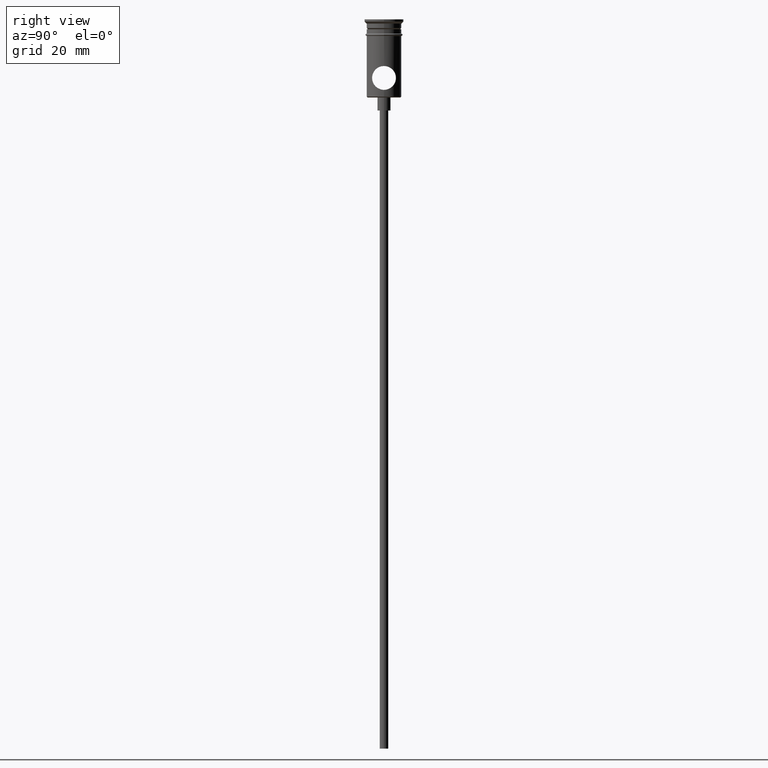
[diagram: clean part render]
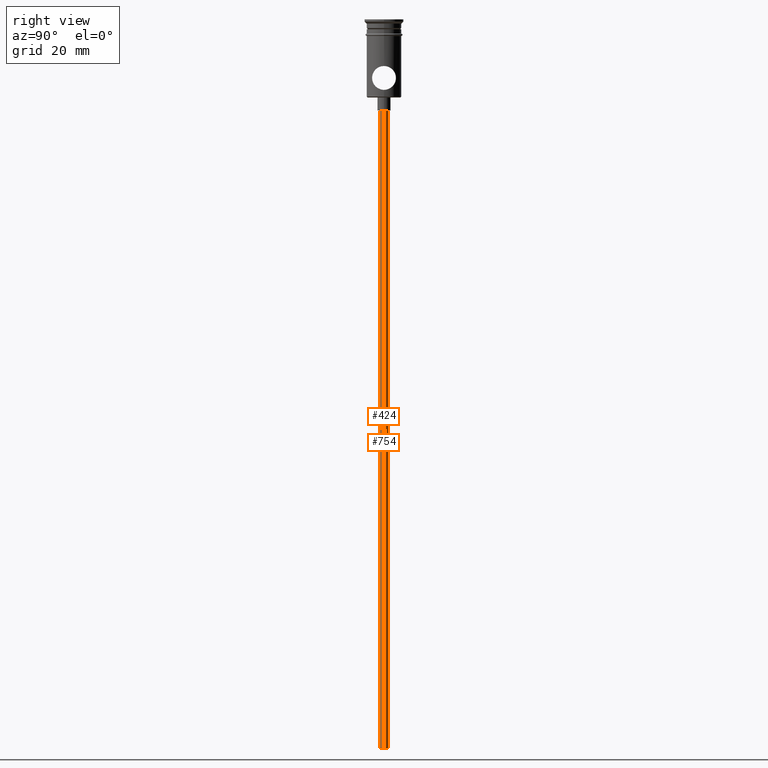
[diagram: same view with one multi-face feature highlighted, each face labeled with its STEP entity id]
A machine part, right view. The highlighted faces form ONE feature: a constant-radius fillet chain: 2 tangent blend faces with common blend radius 1 mm. The faces share edges in the B-rep.
Their STEP definitions:
[1] entity #754 (Cylinder):
#25 = ORIENTED_EDGE ( 'NONE', *, *, #1396, .T. ) ;
#83 = ORIENTED_EDGE ( 'NONE', *, *, #649, .T. ) ;
#105 = VERTEX_POINT ( 'NONE', #731 ) ;
#120 = CARTESIAN_POINT ( 'NONE',  ( -0.9999999999999997780, 1.224646799147352961E-16, -167.9999999999999716 ) ) ;
#261 = CARTESIAN_POINT ( 'NONE',  ( 0.9999999999999997780, 0.000000000000000000, -167.9999999999999716 ) ) ;
#322 = CARTESIAN_POINT ( 'NONE',  ( 0.000000000000000000, 0.000000000000000000, -167.9999999999999716 ) ) ;
#329 = EDGE_LOOP ( 'NONE', ( #839, #83, #25, #1316 ) ) ;
#373 = CARTESIAN_POINT ( 'NONE',  ( 0.000000000000000000, 0.000000000000000000, -167.9999999999999716 ) ) ;
#388 = AXIS2_PLACEMENT_3D ( 'NONE', #322, #403, #1063 ) ;
#403 = DIRECTION ( 'NONE',  ( 0.000000000000000000, 0.000000000000000000, -1.000000000000000000 ) ) ;
#416 = DIRECTION ( 'NONE',  ( 1.000000000000000000, 0.000000000000000000, 0.000000000000000000 ) ) ;
#478 = EDGE_CURVE ( 'NONE', #868, #1144, #1209, .T. ) ;
#578 = DIRECTION ( 'NONE',  ( -1.000000000000000000, 0.000000000000000000, 0.000000000000000000 ) ) ;
#593 = AXIS2_PLACEMENT_3D ( 'NONE', #1226, #888, #578 ) ;
#619 = AXIS2_PLACEMENT_3D ( 'NONE', #373, #1398, #416 ) ;
#649 = EDGE_CURVE ( 'NONE', #788, #105, #1175, .T. ) ;
#677 = EDGE_CURVE ( 'NONE', #788, #868, #813, .T. ) ;
#678 = DIRECTION ( 'NONE',  ( -0.000000000000000000, -0.000000000000000000, 1.000000000000000000 ) ) ;
#731 = CARTESIAN_POINT ( 'NONE',  ( -0.9999999999999997780, 1.224646799147352961E-16, -20.99999999999999645 ) ) ;
#754 = ADVANCED_FACE ( 'NONE', ( #1006 ), #907, .T. ) ;
#788 = VERTEX_POINT ( 'NONE', #120 ) ;
#813 = CIRCLE ( 'NONE', #388, 0.9999999999999997780 ) ;
#839 = ORIENTED_EDGE ( 'NONE', *, *, #677, .F. ) ;
#868 = VERTEX_POINT ( 'NONE', #1338 ) ;
#888 = DIRECTION ( 'NONE',  ( 0.000000000000000000, 0.000000000000000000, -1.000000000000000000 ) ) ;
#907 = CYLINDRICAL_SURFACE ( 'NONE', #619, 0.9999999999999997780 ) ;
#1006 = FACE_OUTER_BOUND ( 'NONE', #329, .T. ) ;
#1063 = DIRECTION ( 'NONE',  ( -1.000000000000000000, 0.000000000000000000, 0.000000000000000000 ) ) ;
#1086 = VECTOR ( 'NONE', #678, 1000.000000000000000 ) ;
#1144 = VERTEX_POINT ( 'NONE', #1381 ) ;
#1175 = LINE ( 'NONE', #1298, #1344 ) ;
#1199 = CIRCLE ( 'NONE', #593, 0.9999999999999997780 ) ;
#1209 = LINE ( 'NONE', #261, #1086 ) ;
#1226 = CARTESIAN_POINT ( 'NONE',  ( 0.000000000000000000, 0.000000000000000000, -20.99999999999999645 ) ) ;
#1298 = CARTESIAN_POINT ( 'NONE',  ( -0.9999999999999997780, 1.224646799147352961E-16, -167.9999999999999716 ) ) ;
#1316 = ORIENTED_EDGE ( 'NONE', *, *, #478, .F. ) ;
#1338 = CARTESIAN_POINT ( 'NONE',  ( 0.9999999999999997780, 0.000000000000000000, -167.9999999999999716 ) ) ;
#1344 = VECTOR ( 'NONE', #1394, 1000.000000000000000 ) ;
#1381 = CARTESIAN_POINT ( 'NONE',  ( 0.9999999999999997780, 0.000000000000000000, -20.99999999999999645 ) ) ;
#1394 = DIRECTION ( 'NONE',  ( -0.000000000000000000, -0.000000000000000000, 1.000000000000000000 ) ) ;
#1396 = EDGE_CURVE ( 'NONE', #105, #1144, #1199, .T. ) ;
#1398 = DIRECTION ( 'NONE',  ( -0.000000000000000000, -0.000000000000000000, 1.000000000000000000 ) ) ;
[2] entity #424 (Cylinder):
#105 = VERTEX_POINT ( 'NONE', #731 ) ;
#106 = CARTESIAN_POINT ( 'NONE',  ( 0.000000000000000000, 0.000000000000000000, -167.9999999999999716 ) ) ;
#120 = CARTESIAN_POINT ( 'NONE',  ( -0.9999999999999997780, 1.224646799147352961E-16, -167.9999999999999716 ) ) ;
#210 = EDGE_CURVE ( 'NONE', #868, #788, #563, .T. ) ;
#261 = CARTESIAN_POINT ( 'NONE',  ( 0.9999999999999997780, 0.000000000000000000, -167.9999999999999716 ) ) ;
#315 = ORIENTED_EDGE ( 'NONE', *, *, #1266, .T. ) ;
#331 = FACE_OUTER_BOUND ( 'NONE', #516, .T. ) ;
#424 = ADVANCED_FACE ( 'NONE', ( #331 ), #1073, .T. ) ;
#439 = DIRECTION ( 'NONE',  ( 0.000000000000000000, 0.000000000000000000, -1.000000000000000000 ) ) ;
#472 = DIRECTION ( 'NONE',  ( 0.000000000000000000, 0.000000000000000000, -1.000000000000000000 ) ) ;
#478 = EDGE_CURVE ( 'NONE', #868, #1144, #1209, .T. ) ;
#516 = EDGE_LOOP ( 'NONE', ( #1286, #532, #693, #315 ) ) ;
#532 = ORIENTED_EDGE ( 'NONE', *, *, #210, .F. ) ;
#545 = AXIS2_PLACEMENT_3D ( 'NONE', #679, #439, #972 ) ;
#563 = CIRCLE ( 'NONE', #1223, 0.9999999999999997780 ) ;
#649 = EDGE_CURVE ( 'NONE', #788, #105, #1175, .T. ) ;
#678 = DIRECTION ( 'NONE',  ( -0.000000000000000000, -0.000000000000000000, 1.000000000000000000 ) ) ;
#679 = CARTESIAN_POINT ( 'NONE',  ( 0.000000000000000000, 0.000000000000000000, -20.99999999999999645 ) ) ;
#693 = ORIENTED_EDGE ( 'NONE', *, *, #478, .T. ) ;
#731 = CARTESIAN_POINT ( 'NONE',  ( -0.9999999999999997780, 1.224646799147352961E-16, -20.99999999999999645 ) ) ;
#764 = DIRECTION ( 'NONE',  ( 1.000000000000000000, 0.000000000000000000, 0.000000000000000000 ) ) ;
#788 = VERTEX_POINT ( 'NONE', #120 ) ;
#791 = CIRCLE ( 'NONE', #545, 0.9999999999999997780 ) ;
#868 = VERTEX_POINT ( 'NONE', #1338 ) ;
#889 = CARTESIAN_POINT ( 'NONE',  ( 0.000000000000000000, 0.000000000000000000, -167.9999999999999716 ) ) ;
#895 = DIRECTION ( 'NONE',  ( -1.000000000000000000, 0.000000000000000000, 0.000000000000000000 ) ) ;
#957 = DIRECTION ( 'NONE',  ( -0.000000000000000000, -0.000000000000000000, 1.000000000000000000 ) ) ;
#972 = DIRECTION ( 'NONE',  ( -1.000000000000000000, 0.000000000000000000, 0.000000000000000000 ) ) ;
#1073 = CYLINDRICAL_SURFACE ( 'NONE', #1174, 0.9999999999999997780 ) ;
#1086 = VECTOR ( 'NONE', #678, 1000.000000000000000 ) ;
#1144 = VERTEX_POINT ( 'NONE', #1381 ) ;
#1174 = AXIS2_PLACEMENT_3D ( 'NONE', #106, #957, #764 ) ;
#1175 = LINE ( 'NONE', #1298, #1344 ) ;
#1209 = LINE ( 'NONE', #261, #1086 ) ;
#1223 = AXIS2_PLACEMENT_3D ( 'NONE', #889, #472, #895 ) ;
#1266 = EDGE_CURVE ( 'NONE', #1144, #105, #791, .T. ) ;
#1286 = ORIENTED_EDGE ( 'NONE', *, *, #649, .F. ) ;
#1298 = CARTESIAN_POINT ( 'NONE',  ( -0.9999999999999997780, 1.224646799147352961E-16, -167.9999999999999716 ) ) ;
#1338 = CARTESIAN_POINT ( 'NONE',  ( 0.9999999999999997780, 0.000000000000000000, -167.9999999999999716 ) ) ;
#1344 = VECTOR ( 'NONE', #1394, 1000.000000000000000 ) ;
#1381 = CARTESIAN_POINT ( 'NONE',  ( 0.9999999999999997780, 0.000000000000000000, -20.99999999999999645 ) ) ;
#1394 = DIRECTION ( 'NONE',  ( -0.000000000000000000, -0.000000000000000000, 1.000000000000000000 ) ) ;